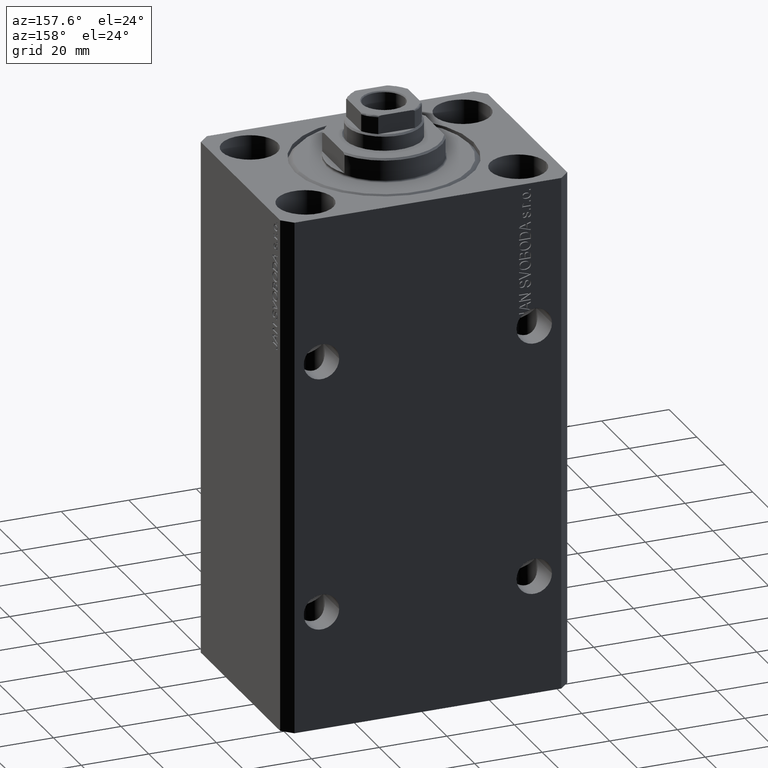
[diagram: clean part render]
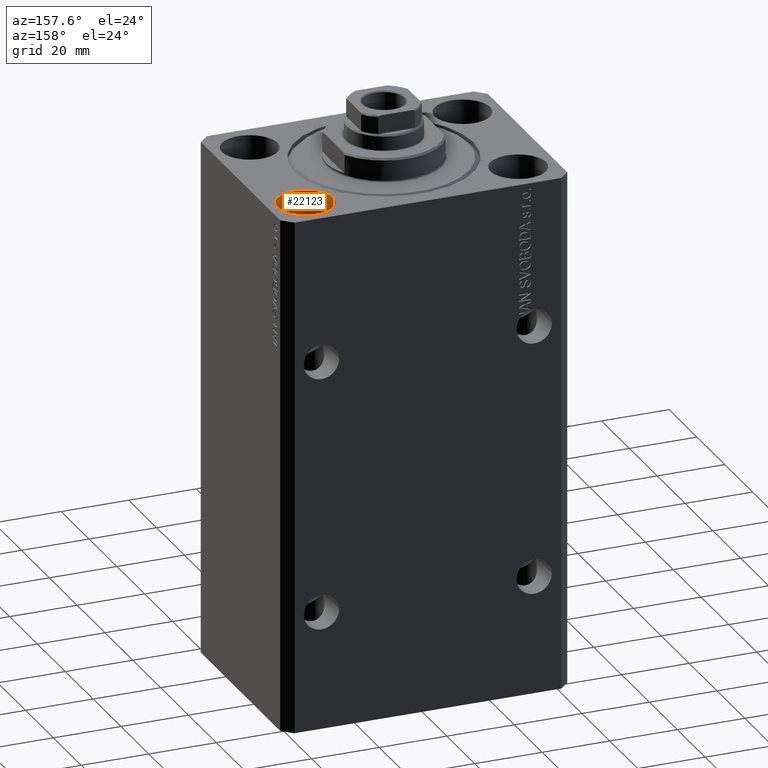
[diagram: same view with one face highlighted and labeled with its STEP entity id]
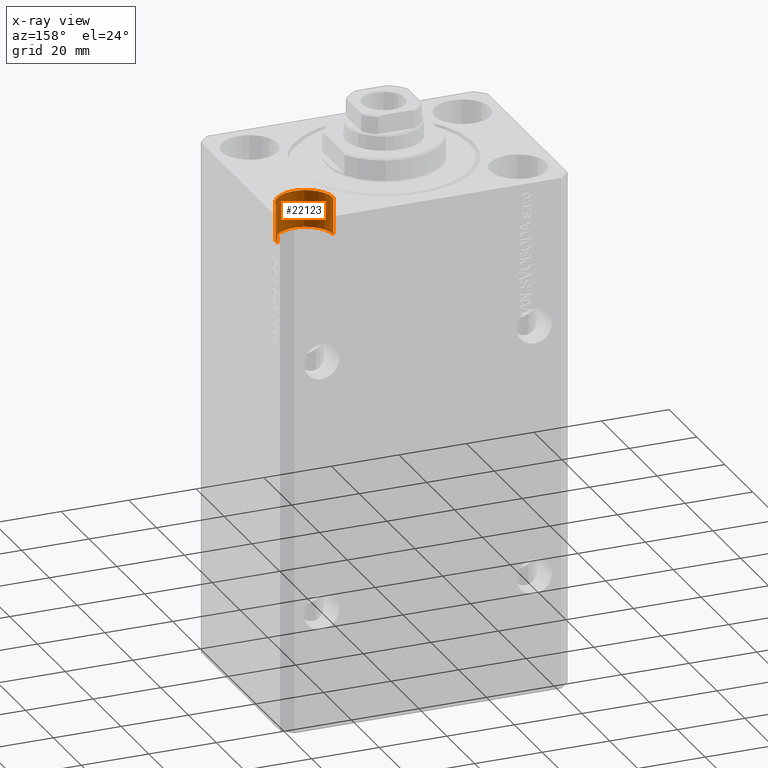
[diagram: x-ray of the same camera — body ghosted, the highlighted face saturated]
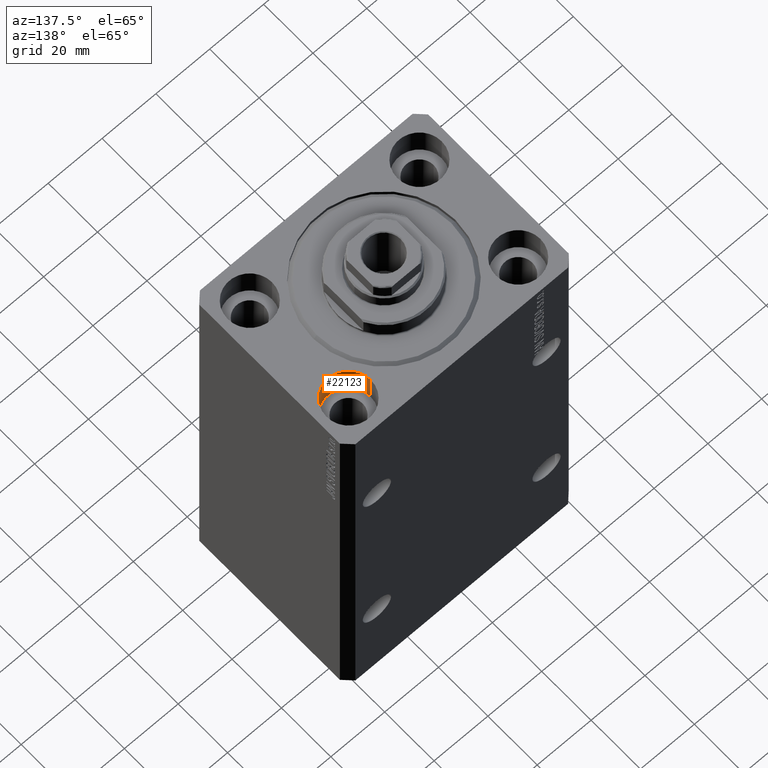
[diagram: same view with one face highlighted and labeled with its STEP entity id]
A machine part, auxiliary view. The second image highlights one B-rep face of the part: STEP entity #22123.
The next image is the same camera in x-ray: the body ghosted, the highlighted face saturated — about 0% of this face is hidden behind the body in this view.
A second angle (auxiliary view) of the same face is appended — the face is thin or edge-on in the first view.
In plain terms, the highlighted cylindrical surface (edge-blend (fillet) strip) has radius 8.25 mm, axis along (0, 0, 1).
Its self-contained STEP definition (entity closure, byte-faithful):
#1630 = CARTESIAN_POINT ( 'NONE',  ( 31.50000000000000000, 20.00000000000001066, 0.000000000000000000 ) ) ;
#2079 = DIRECTION ( 'NONE',  ( 1.000000000000000000, 0.000000000000000000, 0.000000000000000000 ) ) ;
#2291 = VERTEX_POINT ( 'NONE', #14731 ) ;
#4110 = CARTESIAN_POINT ( 'NONE',  ( 39.74999999999999289, 20.00000000000001066, 0.000000000000000000 ) ) ;
#4431 = CARTESIAN_POINT ( 'NONE',  ( 39.74999999999999289, 20.00000000000001066, -11.00000000000000000 ) ) ;
#4521 = VERTEX_POINT ( 'NONE', #33933 ) ;
#4925 = CARTESIAN_POINT ( 'NONE',  ( 39.74999999999999289, 20.00000000000001066, -11.00000000000000000 ) ) ;
#7470 = ORIENTED_EDGE ( 'NONE', *, *, #28106, .T. ) ;
#7572 = CIRCLE ( 'NONE', #19270, 8.249999999999992895 ) ;
#7776 = AXIS2_PLACEMENT_3D ( 'NONE', #1630, #33498, #2079 ) ;
#9749 = FACE_OUTER_BOUND ( 'NONE', #22070, .T. ) ;
#12731 = VERTEX_POINT ( 'NONE', #4110 ) ;
#13679 = ORIENTED_EDGE ( 'NONE', *, *, #32161, .F. ) ;
#14731 = CARTESIAN_POINT ( 'NONE',  ( 23.25000000000000355, 20.00000000000001066, -11.00000000000000000 ) ) ;
#15512 = DIRECTION ( 'NONE',  ( 1.000000000000000000, 0.000000000000000000, 0.000000000000000000 ) ) ;
#15762 = VECTOR ( 'NONE', #43663, 1000.000000000000000 ) ;
#18400 = DIRECTION ( 'NONE',  ( -0.000000000000000000, -0.000000000000000000, 1.000000000000000000 ) ) ;
#19270 = AXIS2_PLACEMENT_3D ( 'NONE', #40503, #37522, #15512 ) ;
#20036 = ORIENTED_EDGE ( 'NONE', *, *, #42177, .F. ) ;
#20549 = VERTEX_POINT ( 'NONE', #4925 ) ;
#20738 = CYLINDRICAL_SURFACE ( 'NONE', #41239, 8.249999999999992895 ) ;
#20924 = ORIENTED_EDGE ( 'NONE', *, *, #34282, .T. ) ;
#20966 = CARTESIAN_POINT ( 'NONE',  ( 31.50000000000000000, 20.00000000000001066, -11.00000000000000000 ) ) ;
#22070 = EDGE_LOOP ( 'NONE', ( #20036, #7470, #20924, #13679 ) ) ;
#22123 = ADVANCED_FACE ( 'NONE', ( #9749 ), #20738, .F. ) ;
#23143 = CIRCLE ( 'NONE', #7776, 8.249999999999992895 ) ;
#28106 = EDGE_CURVE ( 'NONE', #2291, #4521, #36780, .T. ) ;
#28503 = LINE ( 'NONE', #4431, #34828 ) ;
#32161 = EDGE_CURVE ( 'NONE', #20549, #12731, #28503, .T. ) ;
#33114 = CARTESIAN_POINT ( 'NONE',  ( 23.25000000000000355, 20.00000000000001066, -11.00000000000000000 ) ) ;
#33498 = DIRECTION ( 'NONE',  ( 0.000000000000000000, 0.000000000000000000, 1.000000000000000000 ) ) ;
#33933 = CARTESIAN_POINT ( 'NONE',  ( 23.25000000000000355, 20.00000000000001066, 0.000000000000000000 ) ) ;
#34282 = EDGE_CURVE ( 'NONE', #4521, #12731, #23143, .T. ) ;
#34527 = DIRECTION ( 'NONE',  ( 1.000000000000000000, 0.000000000000000000, 0.000000000000000000 ) ) ;
#34828 = VECTOR ( 'NONE', #18400, 1000.000000000000000 ) ;
#36780 = LINE ( 'NONE', #33114, #15762 ) ;
#37522 = DIRECTION ( 'NONE',  ( 0.000000000000000000, 0.000000000000000000, 1.000000000000000000 ) ) ;
#40503 = CARTESIAN_POINT ( 'NONE',  ( 31.50000000000000000, 20.00000000000001066, -11.00000000000000000 ) ) ;
#41239 = AXIS2_PLACEMENT_3D ( 'NONE', #20966, #44631, #34527 ) ;
#42177 = EDGE_CURVE ( 'NONE', #2291, #20549, #7572, .T. ) ;
#43663 = DIRECTION ( 'NONE',  ( -0.000000000000000000, -0.000000000000000000, 1.000000000000000000 ) ) ;
#44631 = DIRECTION ( 'NONE',  ( -0.000000000000000000, -0.000000000000000000, 1.000000000000000000 ) ) ;